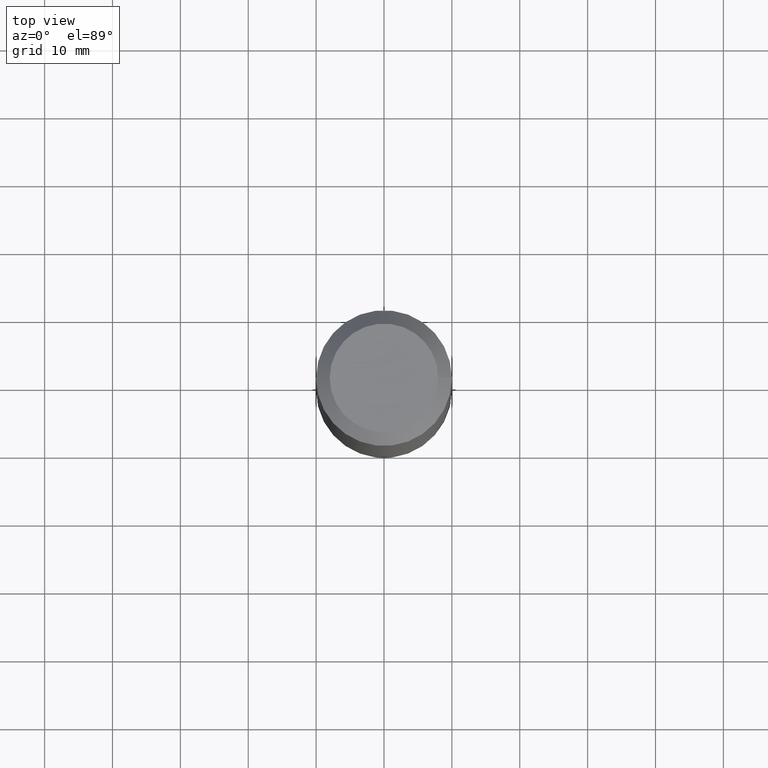
[diagram: clean part render]
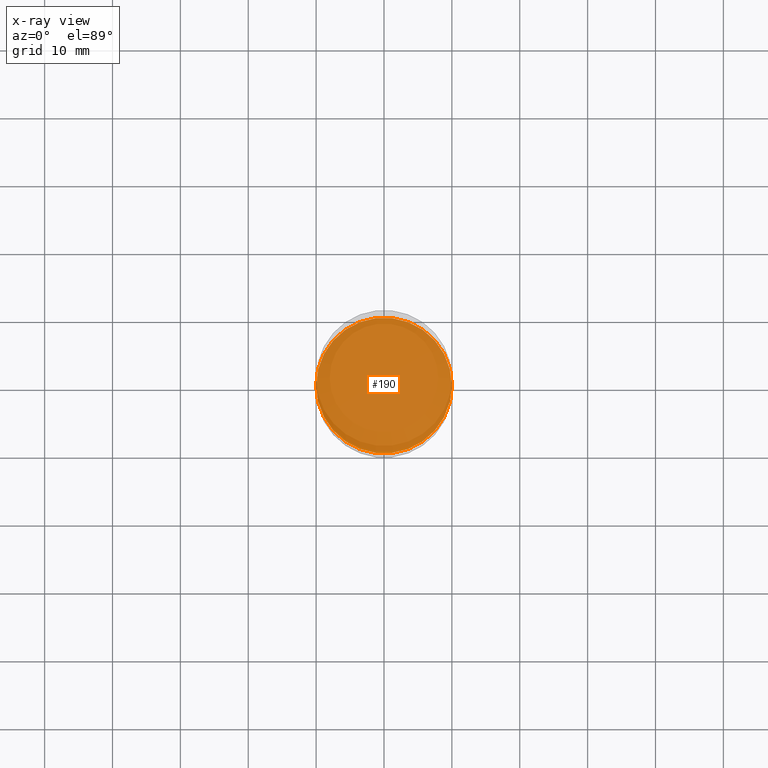
[diagram: x-ray — body ghosted, one internal face saturated and labeled with its STEP entity id]
A machine part, top view, then the same camera in x-ray: the body is ghosted and one INTERNAL B-rep face — a face not visible from any outside direction — is saturated and labeled: STEP entity #190.
In plain terms, the highlighted planar face has unit normal (-0, 0, -1).
Its self-contained STEP definition (entity closure, byte-faithful):
#55 = ORIENTED_EDGE ( 'NONE', *, *, #176, .F. ) ;
#81 = VERTEX_POINT ( 'NONE', #82 ) ;
#82 = CARTESIAN_POINT ( 'NONE',  ( 9.999999999999538147, 0.0000000000000000000, -66.00000000000007105 ) ) ;
#99 = DIRECTION ( 'NONE',  ( -6.982962677686267499E-15, -0.0000000000000000000, -1.000000000000000000 ) ) ;
#105 = AXIS2_PLACEMENT_3D ( 'NONE', #191, #157, #154 ) ;
#127 = CIRCLE ( 'NONE', #184, 10.00000000000000000 ) ;
#135 = FACE_OUTER_BOUND ( 'NONE', #163, .T. ) ;
#154 = DIRECTION ( 'NONE',  ( -1.000000000000000000, 0.0000000000000000000, 6.982962677686266711E-15 ) ) ;
#157 = DIRECTION ( 'NONE',  ( -6.982962677686266711E-15, 0.0000000000000000000, -1.000000000000000000 ) ) ;
#163 = EDGE_LOOP ( 'NONE', ( #55 ) ) ;
#176 = EDGE_CURVE ( 'NONE', #81, #81, #127, .T. ) ;
#182 = DIRECTION ( 'NONE',  ( 1.000000000000000000, 0.0000000000000000000, -6.938893903907228378E-15 ) ) ;
#184 = AXIS2_PLACEMENT_3D ( 'NONE', #189, #99, #182 ) ;
#189 = CARTESIAN_POINT ( 'NONE',  ( -4.608755367272936534E-13, 0.0000000000000000000, -66.00000000000000000 ) ) ;
#190 = ADVANCED_FACE ( 'NONE', ( #135 ), #222, .F. ) ;
#191 = CARTESIAN_POINT ( 'NONE',  ( -4.608755367272936534E-13, 0.0000000000000000000, -66.00000000000000000 ) ) ;
#222 = PLANE ( 'NONE',  #105 ) ;